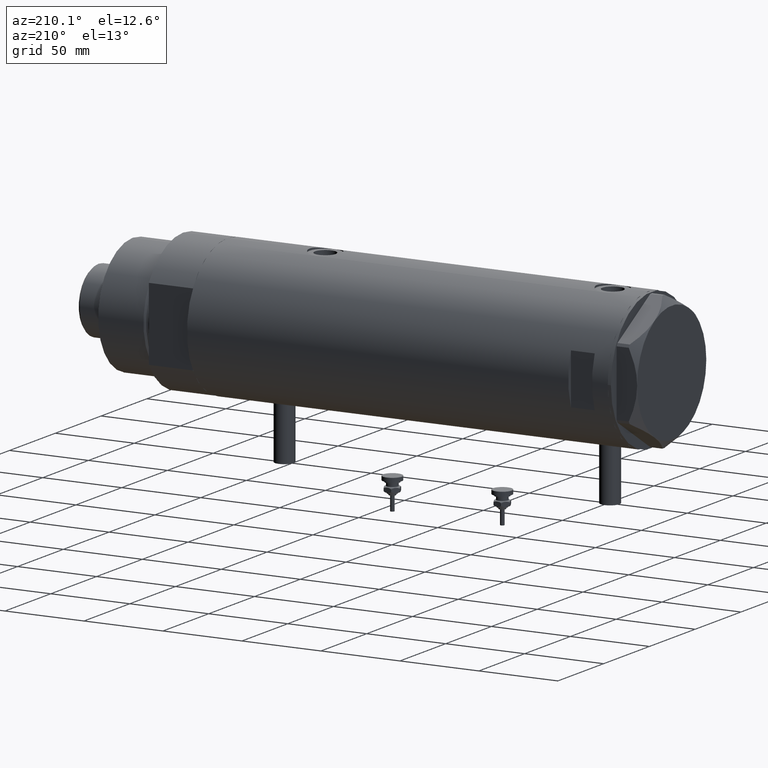
[diagram: clean part render]
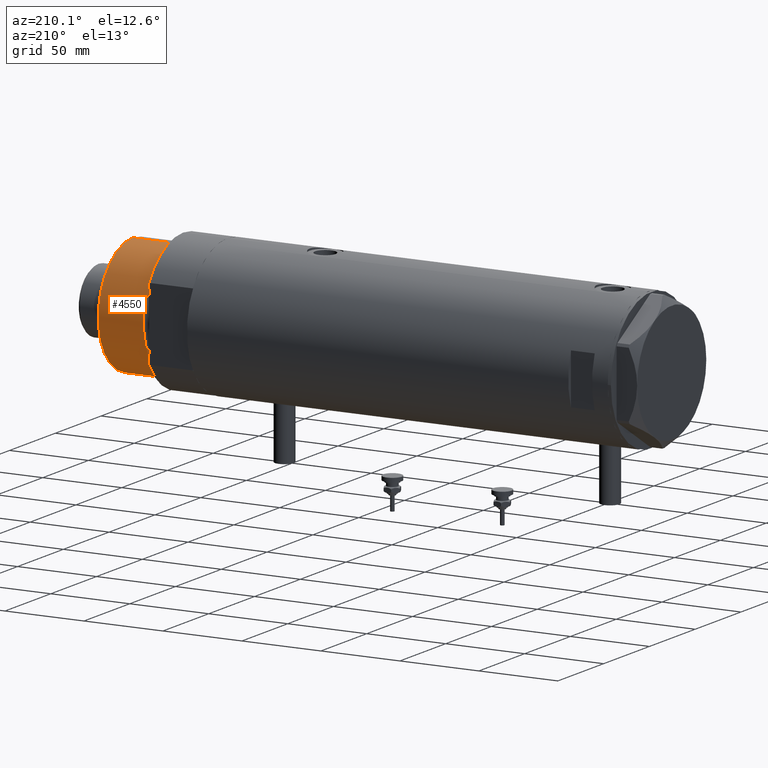
[diagram: same view with one face highlighted and labeled with its STEP entity id]
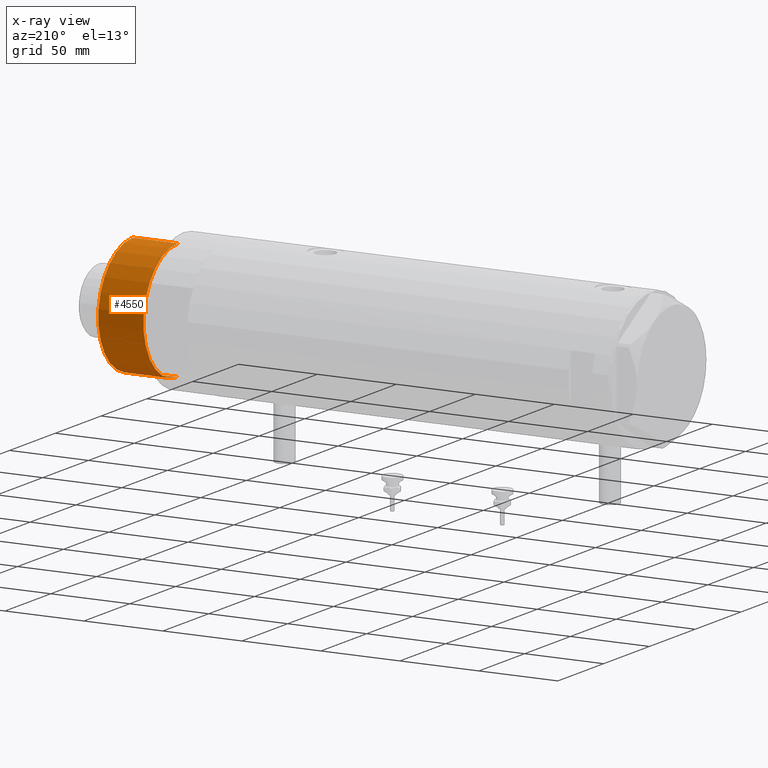
[diagram: x-ray of the same camera — body ghosted, the highlighted face saturated]
A machine part, auxiliary view. The second image highlights one B-rep face of the part: STEP entity #4550.
The next image is the same camera in x-ray: the body ghosted, the highlighted face saturated — about 0% of this face is hidden behind the body in this view.
In plain terms, the highlighted cylindrical surface (partial cylindrical patch) has radius 37.5 mm, axis along (-1, -0, 0).
Its self-contained STEP definition (entity closure, byte-faithful):
#3 = CARTESIAN_POINT ( 'NONE',  ( 37.50000000000000711, 4.592425496802575156E-15, 59.89999999999999147 ) ) ;
#8 = CARTESIAN_POINT ( 'NONE',  ( -37.50000000000000711, 0.000000000000000000, 59.89999999999999147 ) ) ;
#24 = CARTESIAN_POINT ( 'NONE',  ( 0.000000000000000000, 0.000000000000000000, 59.89999999999999147 ) ) ;
#91 = FACE_OUTER_BOUND ( 'NONE', #4088, .T. ) ;
#139 = EDGE_CURVE ( 'NONE', #3757, #2099, #3510, .T. ) ;
#376 = DIRECTION ( 'NONE',  ( -0.000000000000000000, -0.000000000000000000, -1.000000000000000000 ) ) ;
#512 = ORIENTED_EDGE ( 'NONE', *, *, #3956, .T. ) ;
#548 = CARTESIAN_POINT ( 'NONE',  ( -37.50000000000000711, 0.000000000000000000, 59.89999999999999147 ) ) ;
#608 = DIRECTION ( 'NONE',  ( 1.000000000000000000, 0.000000000000000000, 0.000000000000000000 ) ) ;
#614 = CYLINDRICAL_SURFACE ( 'NONE', #4313, 37.50000000000000711 ) ;
#871 = CARTESIAN_POINT ( 'NONE',  ( 37.50000000000000711, 4.592425496802575156E-15, 59.89999999999999147 ) ) ;
#971 = CARTESIAN_POINT ( 'NONE',  ( 0.000000000000000000, 0.000000000000000000, 31.27384048104054415 ) ) ;
#1002 = DIRECTION ( 'NONE',  ( -0.000000000000000000, -0.000000000000000000, -1.000000000000000000 ) ) ;
#1109 = EDGE_CURVE ( 'NONE', #2099, #2554, #5985, .T. ) ;
#1926 = CIRCLE ( 'NONE', #2319, 37.50000000000000711 ) ;
#1960 = DIRECTION ( 'NONE',  ( -1.000000000000000000, 0.000000000000000000, 0.000000000000000000 ) ) ;
#2099 = VERTEX_POINT ( 'NONE', #8 ) ;
#2312 = VECTOR ( 'NONE', #376, 1000.000000000000000 ) ;
#2319 = AXIS2_PLACEMENT_3D ( 'NONE', #971, #5199, #608 ) ;
#2415 = DIRECTION ( 'NONE',  ( -0.000000000000000000, -0.000000000000000000, -1.000000000000000000 ) ) ;
#2554 = VERTEX_POINT ( 'NONE', #4617 ) ;
#3250 = ORIENTED_EDGE ( 'NONE', *, *, #4770, .T. ) ;
#3350 = DIRECTION ( 'NONE',  ( 1.000000000000000000, 0.000000000000000000, 0.000000000000000000 ) ) ;
#3510 = CIRCLE ( 'NONE', #3606, 37.50000000000000711 ) ;
#3606 = AXIS2_PLACEMENT_3D ( 'NONE', #5168, #5321, #3350 ) ;
#3631 = CARTESIAN_POINT ( 'NONE',  ( 37.50000000000000711, 4.592425496802575156E-15, 31.27384048104054415 ) ) ;
#3757 = VERTEX_POINT ( 'NONE', #3 ) ;
#3956 = EDGE_CURVE ( 'NONE', #3757, #5234, #5986, .T. ) ;
#4088 = EDGE_LOOP ( 'NONE', ( #4519, #512, #3250, #4543 ) ) ;
#4313 = AXIS2_PLACEMENT_3D ( 'NONE', #24, #1002, #1960 ) ;
#4519 = ORIENTED_EDGE ( 'NONE', *, *, #139, .F. ) ;
#4543 = ORIENTED_EDGE ( 'NONE', *, *, #1109, .F. ) ;
#4550 = ADVANCED_FACE ( 'NONE', ( #91 ), #614, .T. ) ;
#4617 = CARTESIAN_POINT ( 'NONE',  ( -37.50000000000000711, 0.000000000000000000, 31.27384048104054415 ) ) ;
#4770 = EDGE_CURVE ( 'NONE', #5234, #2554, #1926, .T. ) ;
#5168 = CARTESIAN_POINT ( 'NONE',  ( 0.000000000000000000, 0.000000000000000000, 59.89999999999999147 ) ) ;
#5199 = DIRECTION ( 'NONE',  ( -0.000000000000000000, -0.000000000000000000, 1.000000000000000000 ) ) ;
#5234 = VERTEX_POINT ( 'NONE', #3631 ) ;
#5321 = DIRECTION ( 'NONE',  ( 0.000000000000000000, 0.000000000000000000, 1.000000000000000000 ) ) ;
#5573 = VECTOR ( 'NONE', #2415, 1000.000000000000000 ) ;
#5985 = LINE ( 'NONE', #548, #5573 ) ;
#5986 = LINE ( 'NONE', #871, #2312 ) ;